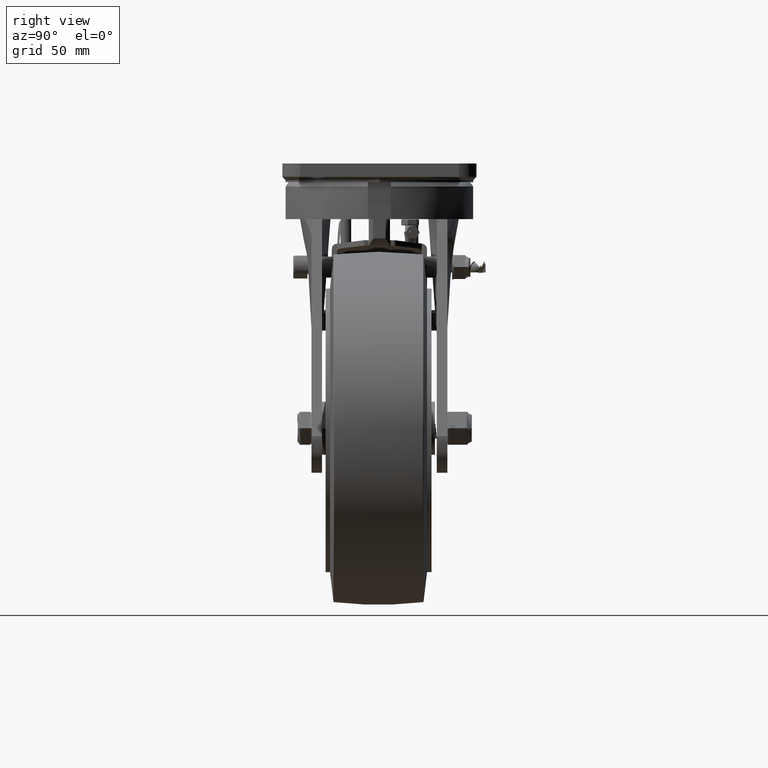
[diagram: clean part render]
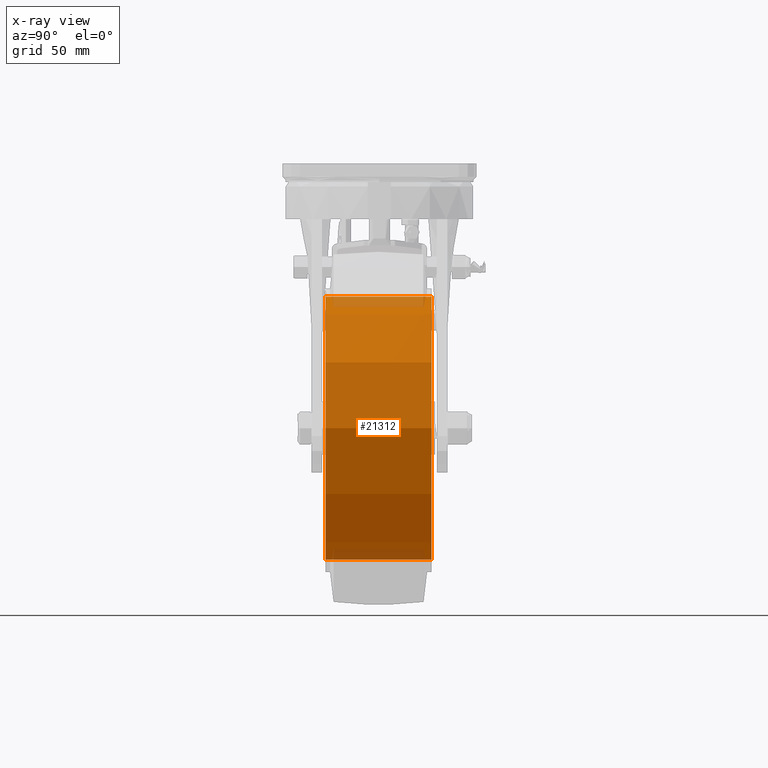
[diagram: x-ray — body ghosted, one internal face saturated and labeled with its STEP entity id]
A machine part, right view, then the same camera in x-ray: the body is ghosted and one INTERNAL B-rep face — a face not visible from any outside direction — is saturated and labeled: STEP entity #21312.
In plain terms, the highlighted cylindrical surface (bore or boss wall) has radius 74.5 mm, axis along (-0, 1, -0).
Its self-contained STEP definition (entity closure, byte-faithful):
#2827=FACE_OUTER_BOUND('',#4153,.T.);
#4153=EDGE_LOOP('',(#16396,#16397,#16398,#16399));
#5668=LINE('',#55090,#7101);
#7101=VECTOR('',#26948,74.5);
#8215=CIRCLE('',#23361,74.5);
#8216=CIRCLE('',#23362,74.5);
#9578=VERTEX_POINT('',#55087);
#9579=VERTEX_POINT('',#55089);
#12068=EDGE_CURVE('',#9578,#9578,#8215,.T.);
#12069=EDGE_CURVE('',#9578,#9579,#5668,.T.);
#12070=EDGE_CURVE('',#9579,#9579,#8216,.T.);
#16396=ORIENTED_EDGE('',*,*,#12068,.F.);
#16397=ORIENTED_EDGE('',*,*,#12069,.T.);
#16398=ORIENTED_EDGE('',*,*,#12070,.T.);
#16399=ORIENTED_EDGE('',*,*,#12069,.F.);
#20668=CYLINDRICAL_SURFACE('',#23360,74.5);
#21312=ADVANCED_FACE('',(#2827),#20668,.F.);
#23360=AXIS2_PLACEMENT_3D('',#55086,#26944,#26945);
#23361=AXIS2_PLACEMENT_3D('',#55088,#26946,#26947);
#23362=AXIS2_PLACEMENT_3D('',#55091,#26949,#26950);
#26944=DIRECTION('center_axis',(-3.49148336110938E-15,1.,-1.84815196644521E-44));
#26945=DIRECTION('ref_axis',(-5.29331454656562E-30,-4.97841222228891E-60,
1.));
#26946=DIRECTION('center_axis',(-3.49148336110938E-15,1.,-1.84815196644521E-44));
#26947=DIRECTION('ref_axis',(-5.29331454656562E-30,-4.97841222228891E-60,
1.));
#26948=DIRECTION('',(-3.49148336110938E-15,1.,-1.84815196644521E-44));
#26949=DIRECTION('center_axis',(-3.49148336110938E-15,1.,-1.84815196644521E-44));
#26950=DIRECTION('ref_axis',(-5.29331454656562E-30,-4.97841222228891E-60,
1.));
#55086=CARTESIAN_POINT('Origin',(3.46944695195361E-15,0.,-1.73898407601761E-57));
#55087=CARTESIAN_POINT('',(1.17337566438883E-13,-30.,-74.5));
#55088=CARTESIAN_POINT('Origin',(1.08213947785235E-13,-30.,5.54445589933562E-43));
#55089=CARTESIAN_POINT('',(-9.21514352276797E-14,30.,-74.5));
#55090=CARTESIAN_POINT('',(-5.65417170169378E-15,-3.18549627223184E-29,
-74.5));
#55091=CARTESIAN_POINT('Origin',(-1.01275053881328E-13,30.,-5.54445589933565E-43));